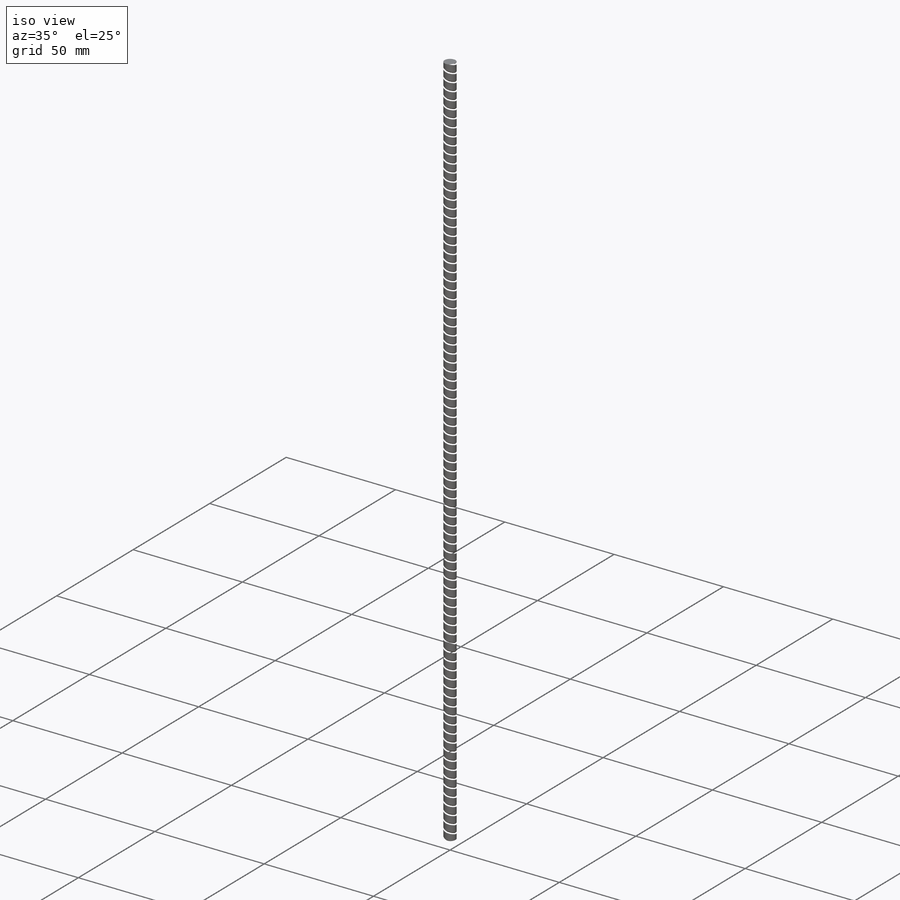
[diagram: iso view]
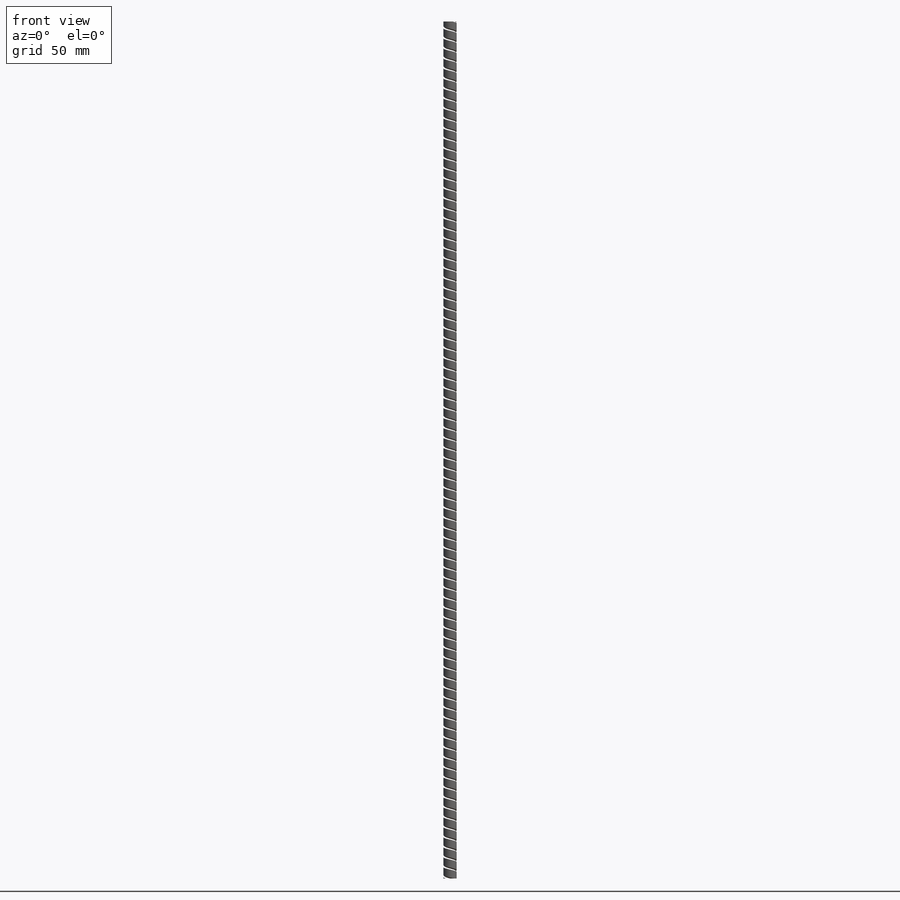
[diagram: front view]
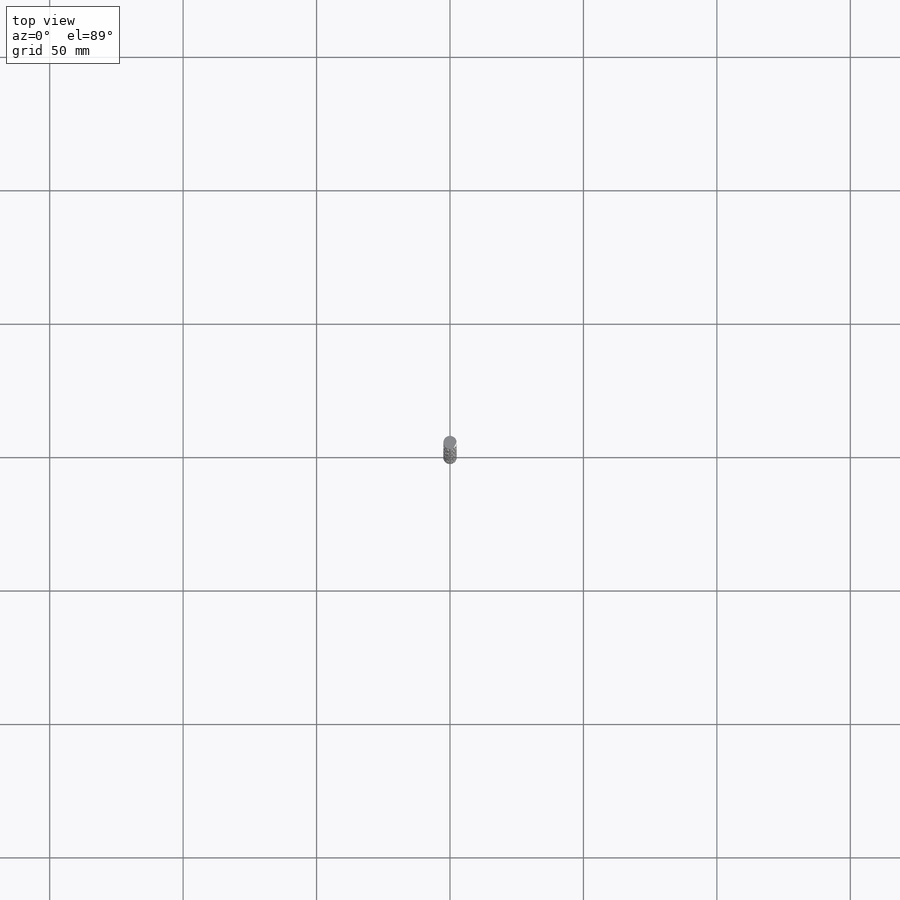
[diagram: top view]
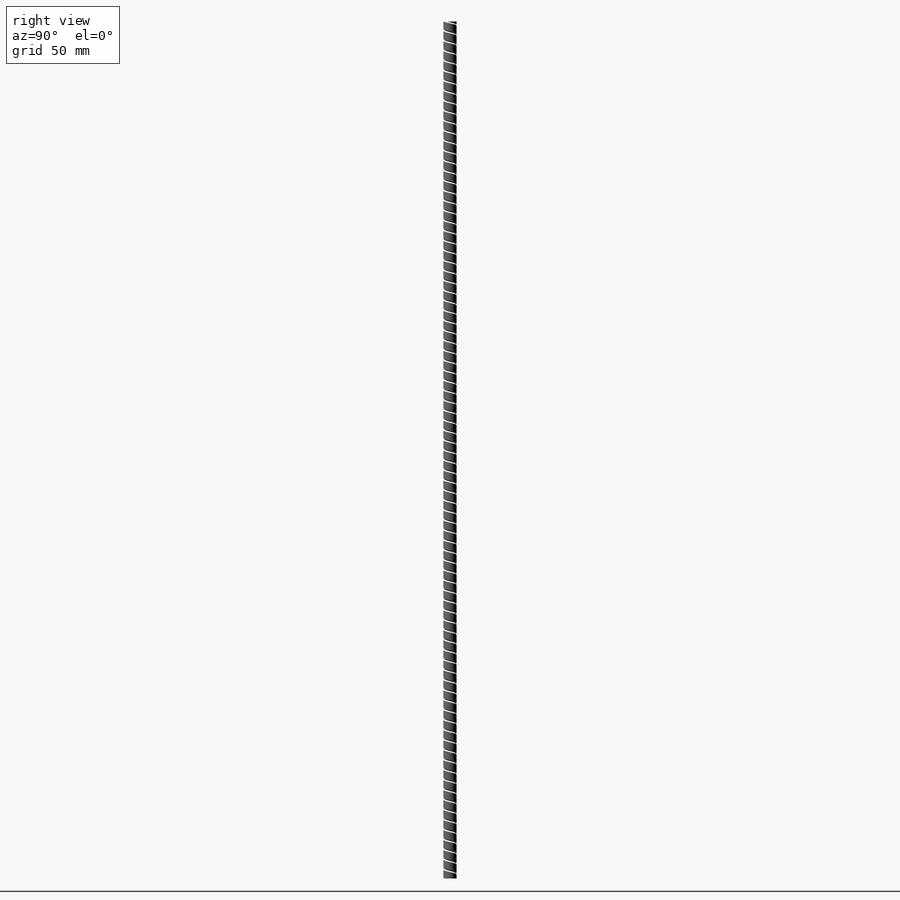
[diagram: right view]
SOLIDWORKS PART (.sldprt)
format: sldprt  version: not decoded by parser v0  size: 1,323,520 bytes
history: native  units: mm
features: sketch x4, material x1, extrude x1, helix x1, sweep x1 (+13 scaffold rows collapsed)
feature tree (21):
  scaffold x13  (default folders/planes/origin — collapsed)
  material  "Material <not specified>"
  sketch  "Sketch1"  dims[D1=5.0mm]
  extrude  "Boss-Extrude1"  Depth=321.1mm
  sketch  "Sketch2"
  sketch  "Sketch3"  dims[D1=0.0mm]
  sketch  "3DSketch1"  dims[D1=0.0mm]
  helix  "Helix/Spiral2"  Pitch=325.5mm
  sweep  "Cut-Sweep3"
decode coverage: 5 of 7 modeling features carry decoded parameters
note: suppression state not decoded; provenance and decode notes live in map.json
